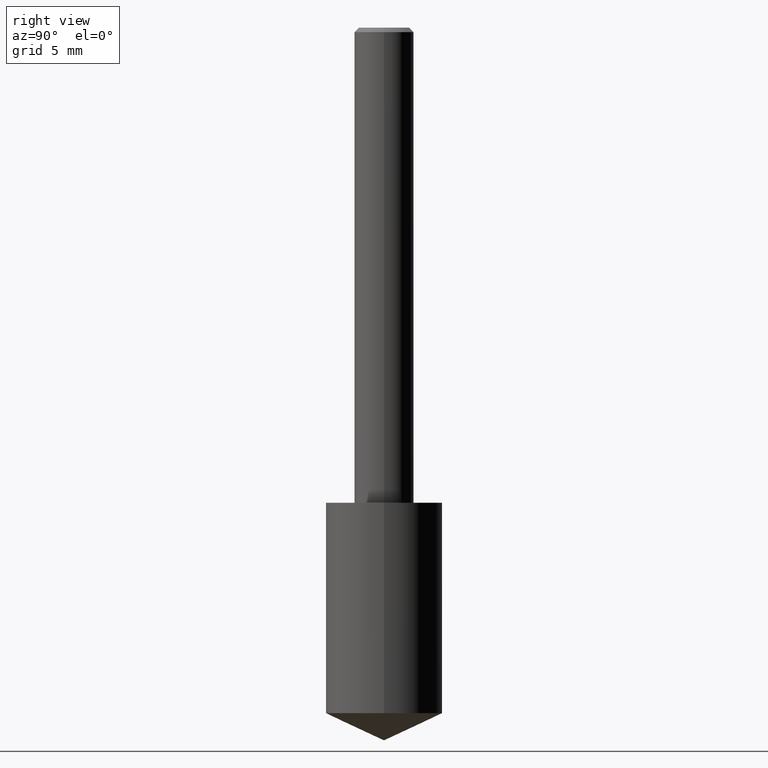
[diagram: clean part render]
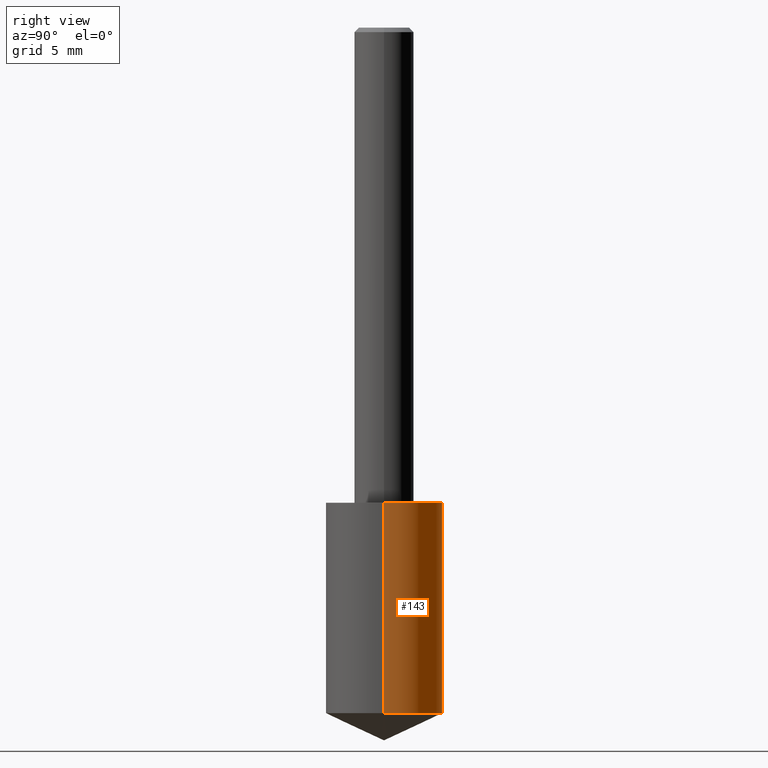
[diagram: same view with one face highlighted and labeled with its STEP entity id]
A machine part, right view. The second image highlights one B-rep face of the part: STEP entity #143.
In plain terms, the highlighted cylindrical surface (partial cylindrical patch) has radius 3.1242 mm, axis along (-0, 0, 1).
Its self-contained STEP definition (entity closure, byte-faithful):
#4 = DIRECTION ( 'NONE',  ( -2.445468806185136877E-29, 3.491481338843145188E-15, 1.000000000000000000 ) ) ;
#32 = DIRECTION ( 'NONE',  ( 1.000000000000000000, -6.982962677686265922E-15, 0.000000000000000000 ) ) ;
#35 = CARTESIAN_POINT ( 'NONE',  ( -0.1229999999999999566, -4.162997591427033247E-15, -1.442644158046935354 ) ) ;
#43 = AXIS2_PLACEMENT_3D ( 'NONE', #176, #290, #32 ) ;
#59 = LINE ( 'NONE', #159, #233 ) ;
#70 = DIRECTION ( 'NONE',  ( -2.445468806185136597E-29, 3.491481338843145583E-15, 1.000000000000000000 ) ) ;
#75 = VERTEX_POINT ( 'NONE', #163 ) ;
#107 = VERTEX_POINT ( 'NONE', #314 ) ;
#143 = ADVANCED_FACE ( 'NONE', ( #153 ), #261, .T. ) ;
#146 = DIRECTION ( 'NONE',  ( 1.000000000000000000, -6.982962677686269866E-15, 0.000000000000000000 ) ) ;
#153 = FACE_OUTER_BOUND ( 'NONE', #255, .T. ) ;
#158 = LINE ( 'NONE', #241, #283 ) ;
#159 = CARTESIAN_POINT ( 'NONE',  ( -0.1229999999999999982, -2.617513773858223550E-15, -1.000000000000000222 ) ) ;
#161 = CARTESIAN_POINT ( 'NONE',  ( 2.445468806185137438E-29, -3.491481338843146371E-15, -1.000000000000000222 ) ) ;
#162 = DIRECTION ( 'NONE',  ( 1.000000000000000000, -6.982962677686265922E-15, 0.000000000000000000 ) ) ;
#163 = CARTESIAN_POINT ( 'NONE',  ( -0.1229999999999999982, -3.390255682642628004E-15, -1.000000000000000222 ) ) ;
#168 = ORIENTED_EDGE ( 'NONE', *, *, #212, .F. ) ;
#176 = CARTESIAN_POINT ( 'NONE',  ( 2.445468806185136877E-29, -3.491481338843145977E-15, -1.000000000000000222 ) ) ;
#194 = CIRCLE ( 'NONE', #43, 0.1229999999999999982 ) ;
#198 = VERTEX_POINT ( 'NONE', #35 ) ;
#201 = AXIS2_PLACEMENT_3D ( 'NONE', #308, #70, #146 ) ;
#207 = CARTESIAN_POINT ( 'NONE',  ( 0.1229999999999999982, -4.350385748198556498E-15, -1.000000000000000222 ) ) ;
#212 = EDGE_CURVE ( 'NONE', #107, #331, #158, .T. ) ;
#230 = EDGE_CURVE ( 'NONE', #198, #75, #59, .T. ) ;
#233 = VECTOR ( 'NONE', #239, 39.37007874015748143 ) ;
#236 = EDGE_CURVE ( 'NONE', #331, #75, #194, .T. ) ;
#239 = DIRECTION ( 'NONE',  ( -2.445468806185136877E-29, 3.491481338843145188E-15, 1.000000000000000000 ) ) ;
#241 = CARTESIAN_POINT ( 'NONE',  ( 0.1229999999999999982, -4.350385748198557287E-15, -1.000000000000000222 ) ) ;
#247 = CIRCLE ( 'NONE', #201, 0.1229999999999999982 ) ;
#255 = EDGE_LOOP ( 'NONE', ( #289, #334, #281, #168 ) ) ;
#261 = CYLINDRICAL_SURFACE ( 'NONE', #300, 0.1229999999999999982 ) ;
#265 = EDGE_CURVE ( 'NONE', #107, #198, #247, .T. ) ;
#281 = ORIENTED_EDGE ( 'NONE', *, *, #236, .F. ) ;
#283 = VECTOR ( 'NONE', #4, 39.37007874015748143 ) ;
#289 = ORIENTED_EDGE ( 'NONE', *, *, #265, .T. ) ;
#290 = DIRECTION ( 'NONE',  ( -2.445468806185136597E-29, 3.491481338843145583E-15, 1.000000000000000000 ) ) ;
#300 = AXIS2_PLACEMENT_3D ( 'NONE', #161, #325, #162 ) ;
#308 = CARTESIAN_POINT ( 'NONE',  ( 3.527941286929000820E-29, -5.036965156411956463E-15, -1.442644158046935354 ) ) ;
#314 = CARTESIAN_POINT ( 'NONE',  ( 0.1229999999999999566, -5.895869565767366984E-15, -1.442644158046935354 ) ) ;
#325 = DIRECTION ( 'NONE',  ( -2.445468806185136597E-29, 3.491481338843145583E-15, 1.000000000000000000 ) ) ;
#331 = VERTEX_POINT ( 'NONE', #207 ) ;
#334 = ORIENTED_EDGE ( 'NONE', *, *, #230, .T. ) ;